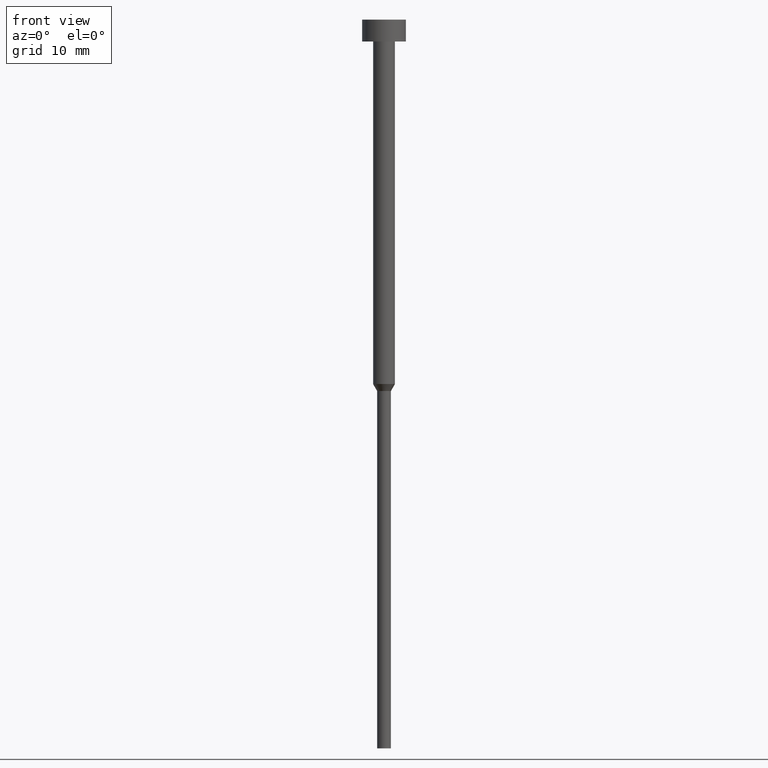
[diagram: clean part render]
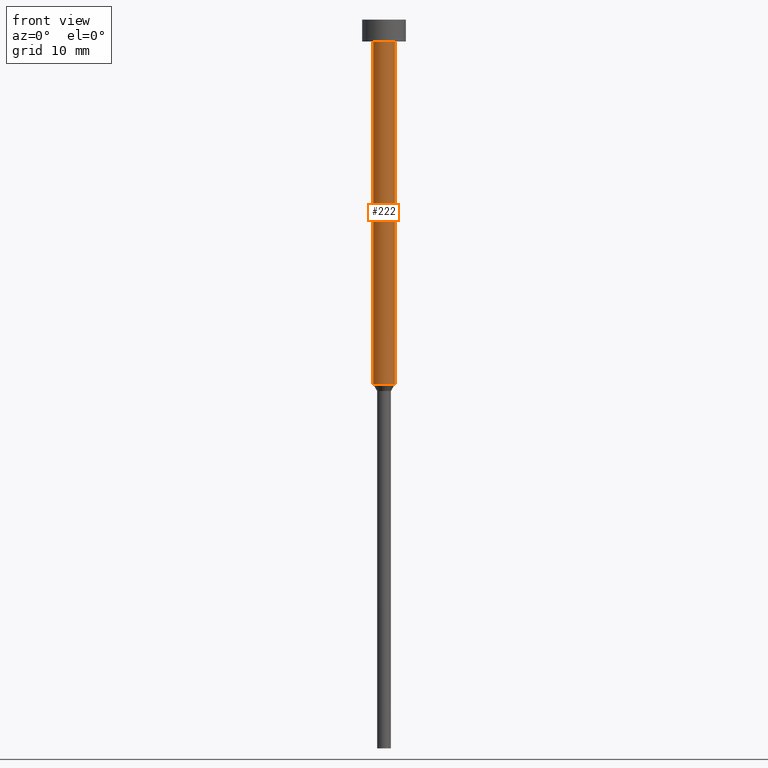
[diagram: same view with one face highlighted and labeled with its STEP entity id]
A machine part, front view. The second image highlights one B-rep face of the part: STEP entity #222.
In plain terms, the highlighted cylindrical surface (edge-blend (fillet) strip) has radius 1.5 mm, axis along (-0, -0, 1).
Its self-contained STEP definition (entity closure, byte-faithful):
#8 = ORIENTED_EDGE ( 'NONE', *, *, #216, .F. ) ;
#17 = ORIENTED_EDGE ( 'NONE', *, *, #230, .F. ) ;
#19 = VECTOR ( 'NONE', #59, 1000.000000000000000 ) ;
#26 = AXIS2_PLACEMENT_3D ( 'NONE', #136, #115, #196 ) ;
#29 = CYLINDRICAL_SURFACE ( 'NONE', #83, 1.500000000000000000 ) ;
#42 = VERTEX_POINT ( 'NONE', #319 ) ;
#43 = CIRCLE ( 'NONE', #345, 1.500000000000000000 ) ;
#59 = DIRECTION ( 'NONE',  ( -0.000000000000000000, -0.000000000000000000, 1.000000000000000000 ) ) ;
#60 = FACE_OUTER_BOUND ( 'NONE', #233, .T. ) ;
#77 = CIRCLE ( 'NONE', #26, 1.500000000000000000 ) ;
#83 = AXIS2_PLACEMENT_3D ( 'NONE', #327, #189, #276 ) ;
#86 = DIRECTION ( 'NONE',  ( 1.000000000000000000, 0.000000000000000000, 0.000000000000000000 ) ) ;
#101 = CARTESIAN_POINT ( 'NONE',  ( 0.000000000000000000, 0.000000000000000000, -3.000000000000000888 ) ) ;
#111 = LINE ( 'NONE', #190, #279 ) ;
#115 = DIRECTION ( 'NONE',  ( -0.000000000000000000, -0.000000000000000000, 1.000000000000000000 ) ) ;
#136 = CARTESIAN_POINT ( 'NONE',  ( 0.000000000000000000, 0.000000000000000000, -50.00000000000000000 ) ) ;
#143 = VERTEX_POINT ( 'NONE', #179 ) ;
#174 = VERTEX_POINT ( 'NONE', #262 ) ;
#179 = CARTESIAN_POINT ( 'NONE',  ( 1.500000000000000000, 0.000000000000000000, -3.000000000000000888 ) ) ;
#189 = DIRECTION ( 'NONE',  ( -0.000000000000000000, -0.000000000000000000, 1.000000000000000000 ) ) ;
#190 = CARTESIAN_POINT ( 'NONE',  ( 1.500000000000000000, 0.000000000000000000, 0.000000000000000000 ) ) ;
#196 = DIRECTION ( 'NONE',  ( 1.000000000000000000, 0.000000000000000000, 0.000000000000000000 ) ) ;
#216 = EDGE_CURVE ( 'NONE', #174, #143, #43, .T. ) ;
#220 = DIRECTION ( 'NONE',  ( -0.000000000000000000, -0.000000000000000000, 1.000000000000000000 ) ) ;
#222 = ADVANCED_FACE ( 'NONE', ( #60 ), #29, .T. ) ;
#230 = EDGE_CURVE ( 'NONE', #344, #174, #299, .T. ) ;
#233 = EDGE_LOOP ( 'NONE', ( #17, #288, #336, #8 ) ) ;
#246 = CARTESIAN_POINT ( 'NONE',  ( -1.500000000000000000, 1.836970198721029934E-16, 0.000000000000000000 ) ) ;
#262 = CARTESIAN_POINT ( 'NONE',  ( -1.500000000000000000, 1.836970198721029934E-16, -3.000000000000000888 ) ) ;
#271 = CARTESIAN_POINT ( 'NONE',  ( -1.500000000000000000, 1.836970198721029934E-16, -50.00000000000000000 ) ) ;
#276 = DIRECTION ( 'NONE',  ( 1.000000000000000000, 0.000000000000000000, 0.000000000000000000 ) ) ;
#279 = VECTOR ( 'NONE', #300, 1000.000000000000000 ) ;
#288 = ORIENTED_EDGE ( 'NONE', *, *, #302, .T. ) ;
#299 = LINE ( 'NONE', #246, #19 ) ;
#300 = DIRECTION ( 'NONE',  ( -0.000000000000000000, -0.000000000000000000, 1.000000000000000000 ) ) ;
#302 = EDGE_CURVE ( 'NONE', #344, #42, #77, .T. ) ;
#313 = EDGE_CURVE ( 'NONE', #42, #143, #111, .T. ) ;
#319 = CARTESIAN_POINT ( 'NONE',  ( 1.500000000000000000, 0.000000000000000000, -50.00000000000000000 ) ) ;
#327 = CARTESIAN_POINT ( 'NONE',  ( 0.000000000000000000, 0.000000000000000000, 0.000000000000000000 ) ) ;
#336 = ORIENTED_EDGE ( 'NONE', *, *, #313, .T. ) ;
#344 = VERTEX_POINT ( 'NONE', #271 ) ;
#345 = AXIS2_PLACEMENT_3D ( 'NONE', #101, #220, #86 ) ;